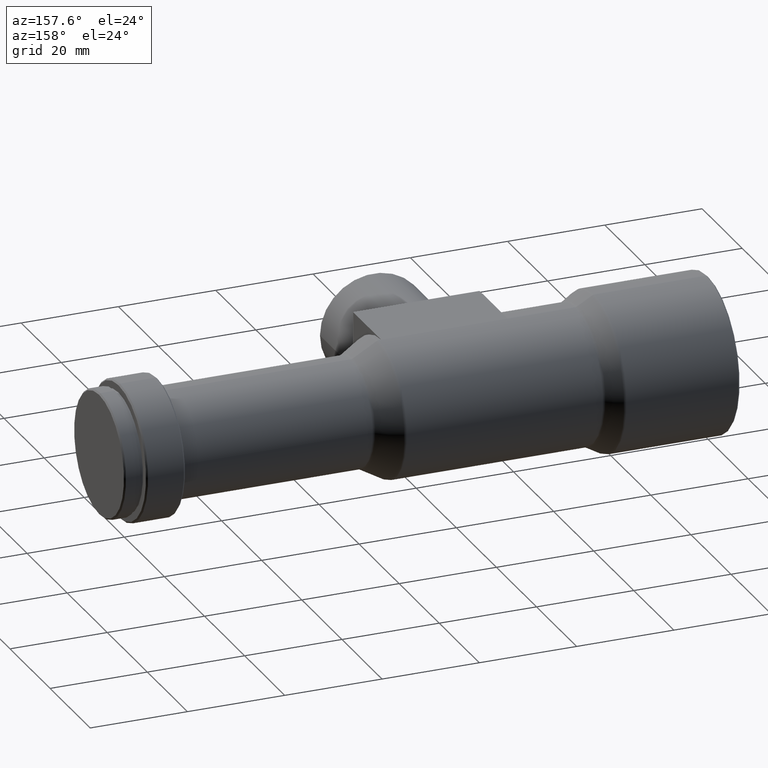
[diagram: clean part render]
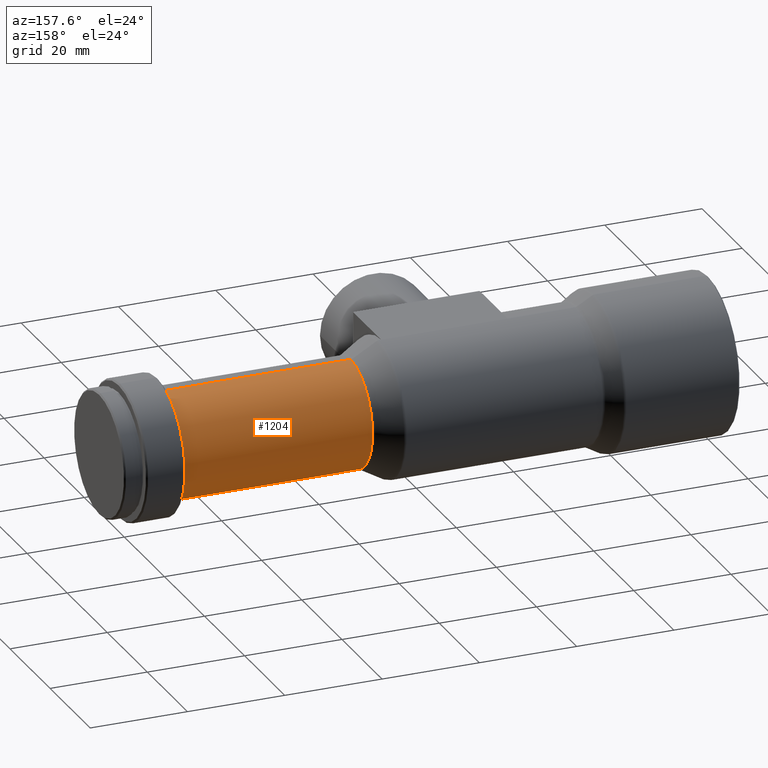
[diagram: same view with one face highlighted and labeled with its STEP entity id]
A machine part, auxiliary view. The second image highlights one B-rep face of the part: STEP entity #1204.
In plain terms, the highlighted cylindrical surface (partial cylindrical patch) has radius 11 mm, axis along (-1, -0, -0).
Its self-contained STEP definition (entity closure, byte-faithful):
#28 = VERTEX_POINT ( 'NONE', #302 ) ;
#99 = CARTESIAN_POINT ( 'NONE',  ( 113.1999999999999900, 1.347111479062088600E-015, -11.00000000000000000 ) ) ;
#109 = DIRECTION ( 'NONE',  ( 0.0000000000000000000, 0.0000000000000000000, 1.000000000000000000 ) ) ;
#136 = DIRECTION ( 'NONE',  ( -1.000000000000000000, -0.0000000000000000000, -0.0000000000000000000 ) ) ;
#163 = VERTEX_POINT ( 'NONE', #1070 ) ;
#183 = DIRECTION ( 'NONE',  ( -1.000000000000000000, -0.0000000000000000000, -0.0000000000000000000 ) ) ;
#289 = DIRECTION ( 'NONE',  ( 0.0000000000000000000, 0.0000000000000000000, 1.000000000000000000 ) ) ;
#302 = CARTESIAN_POINT ( 'NONE',  ( 73.50000000000000000, 1.347111479062089000E-015, -11.00000000000000400 ) ) ;
#348 = DIRECTION ( 'NONE',  ( 0.0000000000000000000, 0.0000000000000000000, 1.000000000000000000 ) ) ;
#352 = DIRECTION ( 'NONE',  ( -1.000000000000000000, -0.0000000000000000000, -0.0000000000000000000 ) ) ;
#364 = VECTOR ( 'NONE', #352, 1000.000000000000000 ) ;
#457 = LINE ( 'NONE', #729, #1085 ) ;
#511 = EDGE_CURVE ( 'NONE', #681, #28, #911, .T. ) ;
#554 = CIRCLE ( 'NONE', #843, 11.00000000000000000 ) ;
#574 = EDGE_LOOP ( 'NONE', ( #931, #985, #1191, #1043 ) ) ;
#681 = VERTEX_POINT ( 'NONE', #1182 ) ;
#729 = CARTESIAN_POINT ( 'NONE',  ( 0.0000000000000000000, 1.347111479062088600E-015, -11.00000000000000200 ) ) ;
#757 = CARTESIAN_POINT ( 'NONE',  ( 73.50000000000000000, 0.0000000000000000000, 0.0000000000000000000 ) ) ;
#789 = CARTESIAN_POINT ( 'NONE',  ( 113.1999999999999900, 0.0000000000000000000, 0.0000000000000000000 ) ) ;
#842 = DIRECTION ( 'NONE',  ( -1.000000000000000000, -0.0000000000000000000, -0.0000000000000000000 ) ) ;
#843 = AXIS2_PLACEMENT_3D ( 'NONE', #789, #1299, #109 ) ;
#853 = FACE_OUTER_BOUND ( 'NONE', #574, .T. ) ;
#883 = EDGE_CURVE ( 'NONE', #1075, #28, #457, .T. ) ;
#903 = CYLINDRICAL_SURFACE ( 'NONE', #1034, 11.00000000000000200 ) ;
#911 = CIRCLE ( 'NONE', #1136, 11.00000000000000400 ) ;
#931 = ORIENTED_EDGE ( 'NONE', *, *, #942, .T. ) ;
#938 = CARTESIAN_POINT ( 'NONE',  ( 0.0000000000000000000, 0.0000000000000000000, 0.0000000000000000000 ) ) ;
#942 = EDGE_CURVE ( 'NONE', #163, #1075, #554, .T. ) ;
#985 = ORIENTED_EDGE ( 'NONE', *, *, #883, .T. ) ;
#1034 = AXIS2_PLACEMENT_3D ( 'NONE', #938, #842, #348 ) ;
#1043 = ORIENTED_EDGE ( 'NONE', *, *, #1215, .F. ) ;
#1070 = CARTESIAN_POINT ( 'NONE',  ( 113.1999999999999900, 0.0000000000000000000, 11.00000000000000000 ) ) ;
#1075 = VERTEX_POINT ( 'NONE', #99 ) ;
#1085 = VECTOR ( 'NONE', #136, 1000.000000000000000 ) ;
#1089 = LINE ( 'NONE', #1241, #364 ) ;
#1136 = AXIS2_PLACEMENT_3D ( 'NONE', #757, #183, #289 ) ;
#1182 = CARTESIAN_POINT ( 'NONE',  ( 73.50000000000000000, 0.0000000000000000000, 11.00000000000000400 ) ) ;
#1191 = ORIENTED_EDGE ( 'NONE', *, *, #511, .F. ) ;
#1204 = ADVANCED_FACE ( 'NONE', ( #853 ), #903, .T. ) ;
#1215 = EDGE_CURVE ( 'NONE', #163, #681, #1089, .T. ) ;
#1241 = CARTESIAN_POINT ( 'NONE',  ( 0.0000000000000000000, 0.0000000000000000000, 11.00000000000000200 ) ) ;
#1299 = DIRECTION ( 'NONE',  ( -1.000000000000000000, -0.0000000000000000000, -0.0000000000000000000 ) ) ;